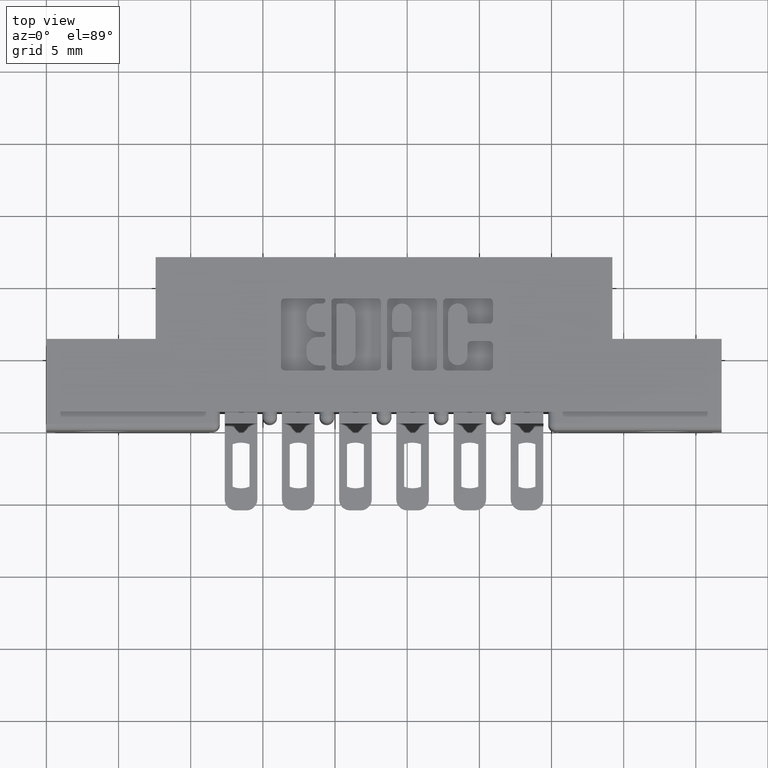
[diagram: clean part render]
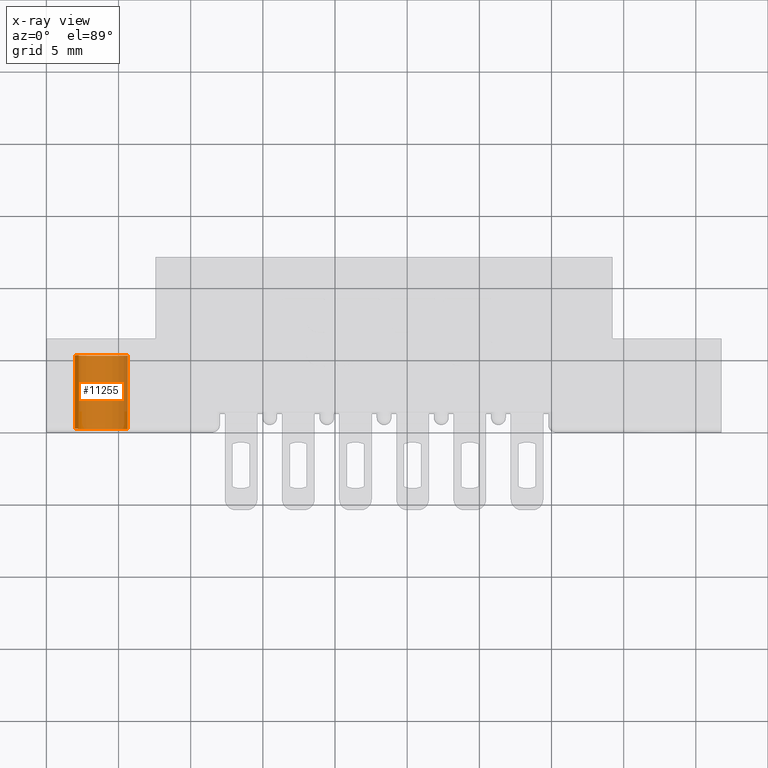
[diagram: x-ray — body ghosted, one internal face saturated and labeled with its STEP entity id]
A machine part, top view, then the same camera in x-ray: the body is ghosted and one INTERNAL B-rep face — a face not visible from any outside direction — is saturated and labeled: STEP entity #11255.
In plain terms, the highlighted cylindrical surface (edge-blend (fillet) strip) has radius 1.9685 mm, axis along (0, 1, 0).
Its self-contained STEP definition (entity closure, byte-faithful):
#48 = EDGE_CURVE ( 'NONE', #943, #9855, #715, .T. ) ;
#170 = EDGE_CURVE ( 'NONE', #4031, #9855, #11529, .T. ) ;
#282 = VERTEX_POINT ( 'NONE', #6474 ) ;
#715 = CIRCLE ( 'NONE', #7386, 0.07749999999999999900 ) ;
#943 = VERTEX_POINT ( 'NONE', #1142 ) ;
#952 = AXIS2_PLACEMENT_3D ( 'NONE', #9468, #8876, #3539 ) ;
#1142 = CARTESIAN_POINT ( 'NONE',  ( 9.491012693391986400E-018, 0.04000000000000000100, 0.07749999999999999900 ) ) ;
#1825 = CYLINDRICAL_SURFACE ( 'NONE', #952, 0.07749999999999999900 ) ;
#2117 = FACE_OUTER_BOUND ( 'NONE', #10393, .T. ) ;
#2489 = ORIENTED_EDGE ( 'NONE', *, *, #7909, .F. ) ;
#3341 = AXIS2_PLACEMENT_3D ( 'NONE', #5906, #6492, #5848 ) ;
#3539 = DIRECTION ( 'NONE',  ( 0.0000000000000000000, 0.0000000000000000000, -1.000000000000000000 ) ) ;
#3621 = CARTESIAN_POINT ( 'NONE',  ( 0.0000000000000000000, 0.2400000000000000500, -0.07749999999999999900 ) ) ;
#3980 = ORIENTED_EDGE ( 'NONE', *, *, #7597, .T. ) ;
#4031 = VERTEX_POINT ( 'NONE', #3621 ) ;
#4257 = VECTOR ( 'NONE', #6499, 39.37007874015748100 ) ;
#4574 = CARTESIAN_POINT ( 'NONE',  ( 0.0000000000000000000, 0.2400000000000000500, -0.07749999999999999900 ) ) ;
#4760 = ORIENTED_EDGE ( 'NONE', *, *, #48, .T. ) ;
#4939 = DIRECTION ( 'NONE',  ( -0.0000000000000000000, -1.000000000000000000, -0.0000000000000000000 ) ) ;
#5804 = ORIENTED_EDGE ( 'NONE', *, *, #170, .F. ) ;
#5848 = DIRECTION ( 'NONE',  ( 0.0000000000000000000, 0.0000000000000000000, 1.000000000000000000 ) ) ;
#5906 = CARTESIAN_POINT ( 'NONE',  ( 0.0000000000000000000, 0.2400000000000000500, 0.0000000000000000000 ) ) ;
#6438 = CARTESIAN_POINT ( 'NONE',  ( 9.491012693391986400E-018, 0.2400000000000000500, 0.07749999999999999900 ) ) ;
#6452 = CIRCLE ( 'NONE', #3341, 0.07749999999999999900 ) ;
#6474 = CARTESIAN_POINT ( 'NONE',  ( 9.491012693391986400E-018, 0.2400000000000000500, 0.07749999999999999900 ) ) ;
#6492 = DIRECTION ( 'NONE',  ( 0.0000000000000000000, 1.000000000000000000, 0.0000000000000000000 ) ) ;
#6499 = DIRECTION ( 'NONE',  ( -0.0000000000000000000, -1.000000000000000000, -0.0000000000000000000 ) ) ;
#7056 = CARTESIAN_POINT ( 'NONE',  ( 0.0000000000000000000, 0.04000000000000000100, 0.0000000000000000000 ) ) ;
#7118 = DIRECTION ( 'NONE',  ( 0.0000000000000000000, 0.0000000000000000000, 1.000000000000000000 ) ) ;
#7136 = DIRECTION ( 'NONE',  ( 0.0000000000000000000, 1.000000000000000000, 0.0000000000000000000 ) ) ;
#7386 = AXIS2_PLACEMENT_3D ( 'NONE', #7056, #7136, #7118 ) ;
#7597 = EDGE_CURVE ( 'NONE', #282, #943, #10865, .T. ) ;
#7909 = EDGE_CURVE ( 'NONE', #282, #4031, #6452, .T. ) ;
#8252 = CARTESIAN_POINT ( 'NONE',  ( 0.0000000000000000000, 0.04000000000000000100, -0.07749999999999999900 ) ) ;
#8876 = DIRECTION ( 'NONE',  ( -0.0000000000000000000, -1.000000000000000000, -0.0000000000000000000 ) ) ;
#9468 = CARTESIAN_POINT ( 'NONE',  ( 0.0000000000000000000, 0.2400000000000000500, 0.0000000000000000000 ) ) ;
#9855 = VERTEX_POINT ( 'NONE', #8252 ) ;
#10393 = EDGE_LOOP ( 'NONE', ( #2489, #3980, #4760, #5804 ) ) ;
#10865 = LINE ( 'NONE', #6438, #4257 ) ;
#11255 = ADVANCED_FACE ( 'NONE', ( #2117 ), #1825, .T. ) ;
#11513 = VECTOR ( 'NONE', #4939, 39.37007874015748100 ) ;
#11529 = LINE ( 'NONE', #4574, #11513 ) ;